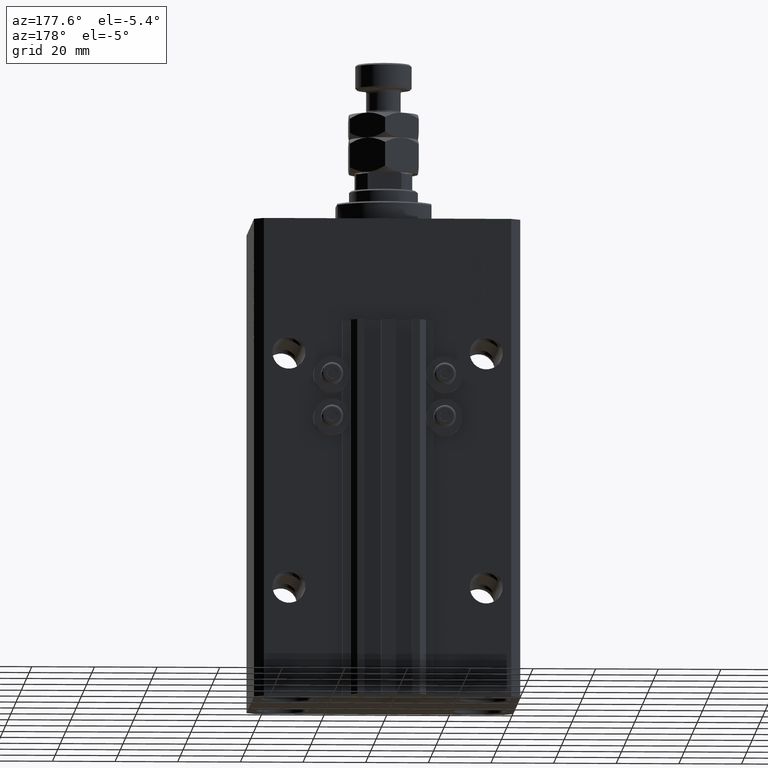
[diagram: clean part render]
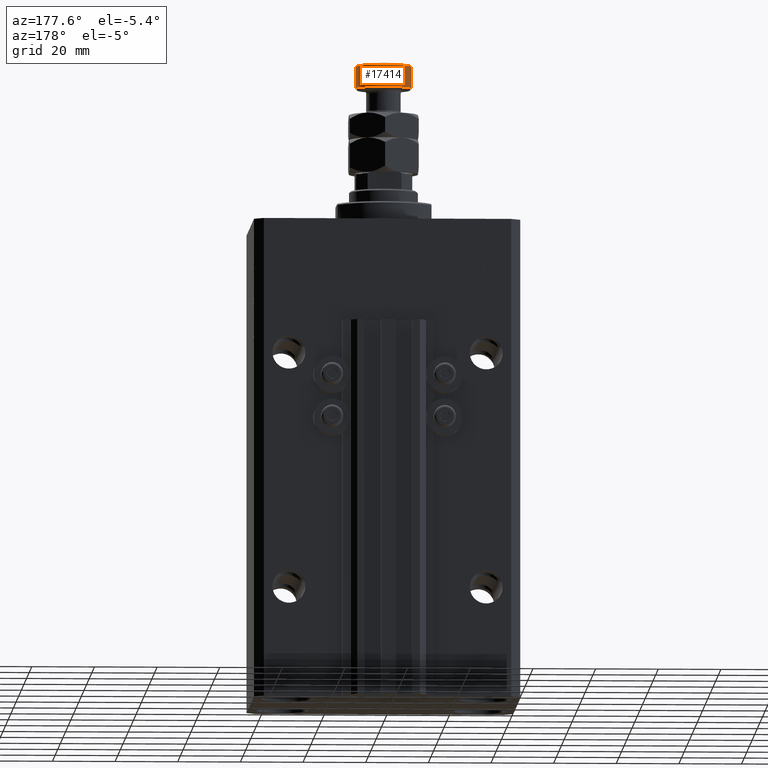
[diagram: same view with one face highlighted and labeled with its STEP entity id]
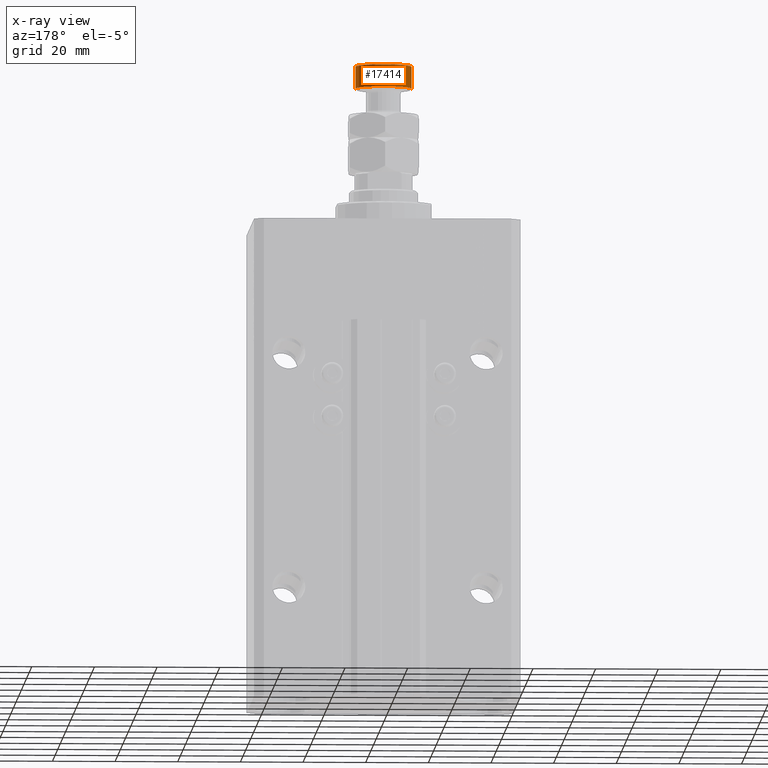
[diagram: x-ray of the same camera — body ghosted, the highlighted face saturated]
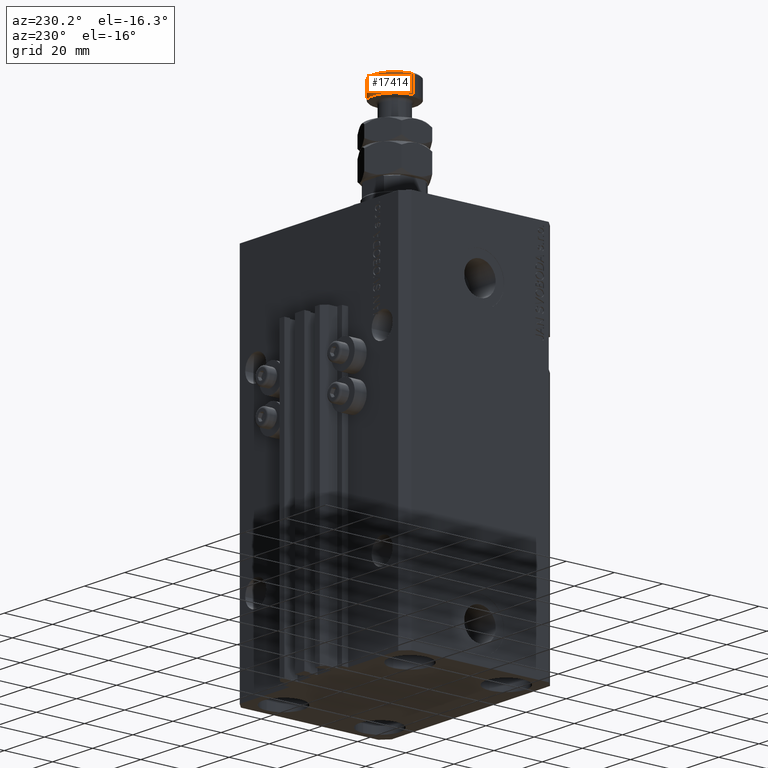
[diagram: same view with one face highlighted and labeled with its STEP entity id]
A machine part, auxiliary view. The second image highlights one B-rep face of the part: STEP entity #17414.
The next image is the same camera in x-ray: the body ghosted, the highlighted face saturated — about 0% of this face is hidden behind the body in this view.
A second angle (auxiliary view) of the same face is appended — the face is thin or edge-on in the first view.
In plain terms, the highlighted cylindrical surface (edge-blend (fillet) strip) has radius 9 mm, axis along (-0, -0, -1).
Its self-contained STEP definition (entity closure, byte-faithful):
#439 = VERTEX_POINT ( 'NONE', #16096 ) ;
#664 = ORIENTED_EDGE ( 'NONE', *, *, #43434, .T. ) ;
#4247 = CARTESIAN_POINT ( 'NONE',  ( 0.000000000000000000, 0.000000000000000000, 27.50000000000000000 ) ) ;
#4531 = DIRECTION ( 'NONE',  ( -1.000000000000000000, 0.000000000000000000, 0.000000000000000000 ) ) ;
#6418 = DIRECTION ( 'NONE',  ( -0.000000000000000000, -0.000000000000000000, -1.000000000000000000 ) ) ;
#6450 = VECTOR ( 'NONE', #29095, 1000.000000000000000 ) ;
#6525 = CARTESIAN_POINT ( 'NONE',  ( -9.000000000000000000, 0.000000000000000000, 27.50000000000000000 ) ) ;
#10353 = DIRECTION ( 'NONE',  ( -0.000000000000000000, -0.000000000000000000, 1.000000000000000000 ) ) ;
#12220 = CARTESIAN_POINT ( 'NONE',  ( 9.000000000000000000, 1.102182119232617714E-15, 27.50000000000000000 ) ) ;
#13357 = DIRECTION ( 'NONE',  ( 0.000000000000000000, 0.000000000000000000, -1.000000000000000000 ) ) ;
#13668 = ORIENTED_EDGE ( 'NONE', *, *, #23938, .F. ) ;
#15327 = AXIS2_PLACEMENT_3D ( 'NONE', #4247, #10353, #40797 ) ;
#16096 = CARTESIAN_POINT ( 'NONE',  ( -9.000000000000000000, 0.000000000000000000, 34.49999999999999289 ) ) ;
#17036 = LINE ( 'NONE', #21324, #6450 ) ;
#17414 = ADVANCED_FACE ( 'NONE', ( #28134 ), #38987, .T. ) ;
#18953 = AXIS2_PLACEMENT_3D ( 'NONE', #46537, #35448, #4531 ) ;
#20213 = AXIS2_PLACEMENT_3D ( 'NONE', #27723, #13357, #47093 ) ;
#20941 = ORIENTED_EDGE ( 'NONE', *, *, #26953, .T. ) ;
#21324 = CARTESIAN_POINT ( 'NONE',  ( 9.000000000000000000, 1.102182119232617714E-15, 35.00000000000000000 ) ) ;
#23938 = EDGE_CURVE ( 'NONE', #439, #27436, #25300, .T. ) ;
#24251 = ORIENTED_EDGE ( 'NONE', *, *, #49122, .T. ) ;
#25062 = VERTEX_POINT ( 'NONE', #33742 ) ;
#25300 = LINE ( 'NONE', #44163, #48107 ) ;
#26953 = EDGE_CURVE ( 'NONE', #25062, #38473, #17036, .T. ) ;
#27436 = VERTEX_POINT ( 'NONE', #6525 ) ;
#27723 = CARTESIAN_POINT ( 'NONE',  ( 0.000000000000000000, 0.000000000000000000, 34.49999999999999289 ) ) ;
#28134 = FACE_OUTER_BOUND ( 'NONE', #48644, .T. ) ;
#29095 = DIRECTION ( 'NONE',  ( -0.000000000000000000, -0.000000000000000000, -1.000000000000000000 ) ) ;
#29855 = CIRCLE ( 'NONE', #20213, 9.000000000000000000 ) ;
#33742 = CARTESIAN_POINT ( 'NONE',  ( 9.000000000000000000, 1.102182119232617714E-15, 34.49999999999999289 ) ) ;
#35448 = DIRECTION ( 'NONE',  ( -0.000000000000000000, -0.000000000000000000, -1.000000000000000000 ) ) ;
#38473 = VERTEX_POINT ( 'NONE', #12220 ) ;
#38987 = CYLINDRICAL_SURFACE ( 'NONE', #18953, 9.000000000000000000 ) ;
#40797 = DIRECTION ( 'NONE',  ( 1.000000000000000000, 0.000000000000000000, 0.000000000000000000 ) ) ;
#43434 = EDGE_CURVE ( 'NONE', #38473, #27436, #45067, .T. ) ;
#44163 = CARTESIAN_POINT ( 'NONE',  ( -9.000000000000000000, 0.000000000000000000, 35.00000000000000000 ) ) ;
#45067 = CIRCLE ( 'NONE', #15327, 9.000000000000000000 ) ;
#46537 = CARTESIAN_POINT ( 'NONE',  ( 0.000000000000000000, 0.000000000000000000, 35.00000000000000000 ) ) ;
#47093 = DIRECTION ( 'NONE',  ( 1.000000000000000000, 0.000000000000000000, 0.000000000000000000 ) ) ;
#48107 = VECTOR ( 'NONE', #6418, 1000.000000000000000 ) ;
#48644 = EDGE_LOOP ( 'NONE', ( #24251, #20941, #664, #13668 ) ) ;
#49122 = EDGE_CURVE ( 'NONE', #439, #25062, #29855, .T. ) ;